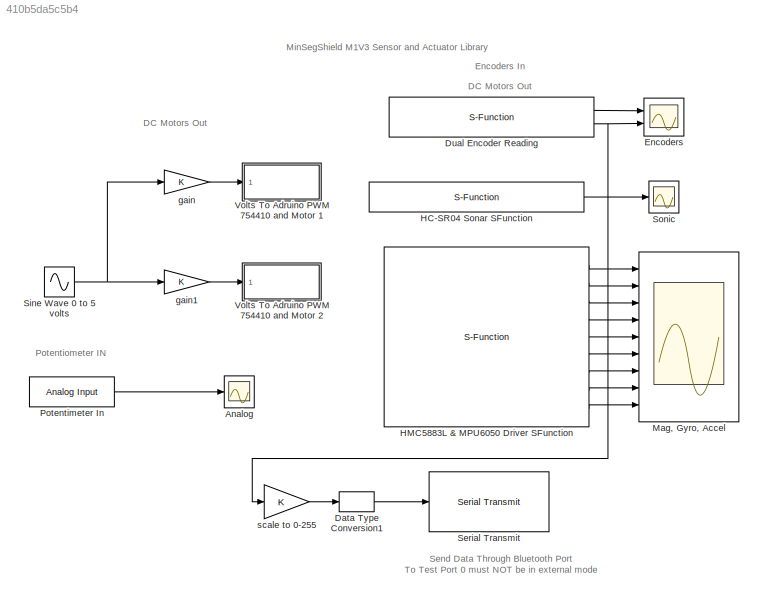
MODEL slx_410b5da5c5b4
KIND model
BLOCK [Scope] Analog
  DataFormat = StructureWithTime
  Floating = off
  NumInputPorts = 1
  Ports = [1]
  SampleTime = 0
  SaveName = ScopeData6
  ShowLegends = off
  TimeRange = 30
  YMax = 1100
  YMin = 200
BLOCK [DataTypeConversion] Data Type Conversion1
  OutDataTypeStr = uint8
  RndMeth = Floor
  SaturateOnIntegerOverflow = off
BLOCK [S-Function] Dual Encoder Reading
  CopyFcn = set_param(gcbh,'LinkStatus','none')
  EnableBusSupport = off
  FunctionName = sf_QuadEncoder_2_3_18_19
  InitFcn = try, set_param(gcb,'FunctionName','sf_QuadEncoder_2_3_18_19'), end
  OpenFcn = sfunctionwizard(gcbh)
  Parameters = uint8([0 1]),uint8([2 18]),uint8([3 19])
  Ports = [0, 2]
  PreSaveFcn = try, set_param(gcb,'FunctionName','sf_QuadEncoder_2_3_18_19'), end
  SFunctionModules = sf_QuadEncoder_2_3_18_19_wrapper
BLOCK [Scope] Encoders
  DataFormat = StructureWithTime
  Floating = off
  NumInputPorts = 2
  Ports = [2]
  SampleTime = 0
  ShowLegends = off
  TimeRange = 10
  YMax = 400~1
  YMin = -700~-1
BLOCK [S-Function] HC-SR04 Sonar SFunction
  CopyFcn = set_param(gcbh,'LinkStatus','none')
  EnableBusSupport = off
  FunctionName = sf_HCSR04_7_8
  InitFcn = try, set_param(gcb,'FunctionName','sf_HCSR04_7_8'), end
  OpenFcn = sfunctionwizard(gcbh)
  Ports = [0, 1]
  PreSaveFcn = try, set_param(gcb,'FunctionName','sf_HCSR04_7_8'), end
  SFunctionModules = sf_HCSR04_7_8_wrapper
BLOCK [S-Function] HMC5883L & MPU6050 Driver SFunction
  CopyFcn = set_param(gcbh,'LinkStatus','none')
  EnableBusSupport = off
  FunctionName = sf_HMC5883L_MPU6050
  InitFcn = try, set_param(gcb,'FunctionName','sf_HMC5883L_MPU6050'), end
  OpenFcn = sfunctionwizard(gcbh)
  Ports = [0, 9]
  PreSaveFcn = try, set_param(gcb,'FunctionName','sf_HMC5883L_MPU6050'), end
  SFunctionModules = sf_HMC5883L_MPU6050_wrapper
BLOCK [Scope] Mag, Gyro, Accel
  DataFormat = StructureWithTime
  Floating = off
  NumInputPorts = 9
  Ports = [9]
  SampleTime = 0
  SaveName = ScopeData1
  ShowLegends = off
  TimeRange = 10
  YMax = 400~0~0~15000~1500~25000~7500~10000~20000
  YMin = 0~-300~-750~-15000~-2000~-20000~-7500~-7500~-5000
BLOCK [Reference] Potentimeter In  REF=arduinolib/Analog Input
  Ports = [0, 1]
  SourceBlock = arduinolib/Analog Input
  SourceType = Arduino Analog Input
  pinNumber = 0
  sampleTime = -1
BLOCK [Reference] Serial Transmit  REF=arduinolib/Serial Transmit
  Ports = [1]
  SourceBlock = arduinolib/Serial Transmit
  SourceType = Arduino Serial Transmit
  portNumber = 2
BLOCK [Sin] Sine Wave 0 to 5 volts
  Amplitude = 5
  Frequency = 50*2*pi
  Ports = [0, 1]
  SampleTime = .1
  Samples = 30
  SineType = Sample based
BLOCK [Scope] Sonic
  DataFormat = StructureWithTime
  Floating = off
  NumInputPorts = 1
  Ports = [1]
  SampleTime = 0
  SaveName = ScopeData2
  ShowLegends = off
  TimeRange = 30
  YMax = 175
  YMin = 0
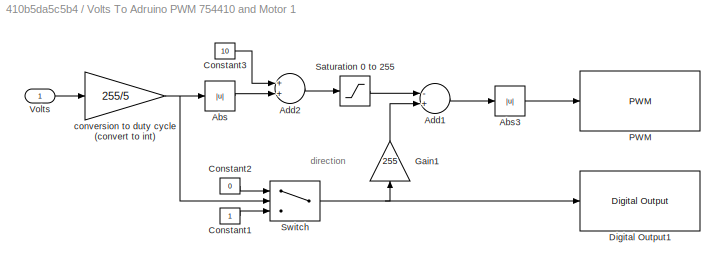
BLOCK [SubSystem] Volts To Adruino PWM 754410 and Motor 1
  FunctionWithSeparateData = off
  MaskHideContents = off
  MinAlgLoopOccurrences = off
  Opaque = off
  Ports = [1]
  PropExecContextOutsideSubsystem = off
  RTWSystemCode = Auto
  RequestExecContextInheritance = off
BLOCK [Abs] Volts To Adruino PWM 754410 and Motor 1/Abs
  SaturateOnIntegerOverflow = off
BLOCK [Abs] Volts To Adruino PWM 754410 and Motor 1/Abs3
  SaturateOnIntegerOverflow = off
BLOCK [Sum] Volts To Adruino PWM 754410 and Motor 1/Add1
  InputSameDT = off
  Inputs = -+
  OutDataTypeStr = Inherit: Inherit via internal rule
  Ports = [2, 1]
  SaturateOnIntegerOverflow = off
BLOCK [Sum] Volts To Adruino PWM 754410 and Motor 1/Add2
  InputSameDT = off
  OutDataTypeStr = Inherit: Inherit via internal rule
  Ports = [2, 1]
  SaturateOnIntegerOverflow = off
BLOCK [Constant] Volts To Adruino PWM 754410 and Motor 1/Constant1
BLOCK [Constant] Volts To Adruino PWM 754410 and Motor 1/Constant2
  Value = 0
BLOCK [Constant] Volts To Adruino PWM 754410 and Motor 1/Constant3
  Value = 10
BLOCK [Reference] Volts To Adruino PWM 754410 and Motor 1/Digital Output1  REF=arduinolib/Digital Output
  Ports = [1]
  SourceBlock = arduinolib/Digital Output
  SourceType = Arduino Digital Output
  pinNumber = 5
BLOCK [Gain] Volts To Adruino PWM 754410 and Motor 1/Gain1
  Gain = 255
  OutDataTypeStr = Inherit: Inherit via internal rule
  ParamDataTypeStr = Inherit: Inherit via internal rule
  SaturateOnIntegerOverflow = off
BLOCK [Reference] Volts To Adruino PWM 754410 and Motor 1/PWM  REF=arduinolib/PWM
  Ports = [1]
  SourceBlock = arduinolib/PWM
  SourceType = Arduino PWM
  pinNumber = 4
BLOCK [Saturate] Volts To Adruino PWM 754410 and Motor 1/Saturation 0 to 255
  InputPortMap = u0
  LowerLimit = 0
  Ports = [1, 1]
  UpperLimit = 255
BLOCK [Switch] Volts To Adruino PWM 754410 and Motor 1/Switch
  InputSameDT = off
  SaturateOnIntegerOverflow = off
BLOCK [Inport] Volts To Adruino PWM 754410 and Motor 1/Volts
  IconDisplay = Port number
BLOCK [Gain] Volts To Adruino PWM 754410 and Motor 1/conversion to duty cycle (convert to int)
  Gain = 255/5
  OutDataTypeStr = int16
  ParamDataTypeStr = Inherit: Inherit via internal rule
  SaturateOnIntegerOverflow = off
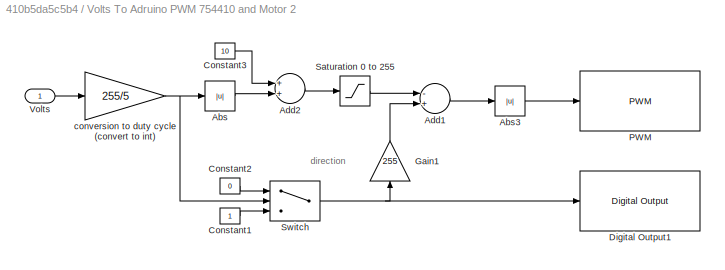
BLOCK [SubSystem] Volts To Adruino PWM 754410 and Motor 2
  FunctionWithSeparateData = off
  MaskHideContents = off
  MinAlgLoopOccurrences = off
  Opaque = off
  Ports = [1]
  PropExecContextOutsideSubsystem = off
  RTWSystemCode = Auto
  RequestExecContextInheritance = off
BLOCK [Abs] Volts To Adruino PWM 754410 and Motor 2/Abs
  SaturateOnIntegerOverflow = off
BLOCK [Abs] Volts To Adruino PWM 754410 and Motor 2/Abs3
  SaturateOnIntegerOverflow = off
BLOCK [Sum] Volts To Adruino PWM 754410 and Motor 2/Add1
  InputSameDT = off
  Inputs = -+
  OutDataTypeStr = Inherit: Inherit via internal rule
  Ports = [2, 1]
  SaturateOnIntegerOverflow = off
BLOCK [Sum] Volts To Adruino PWM 754410 and Motor 2/Add2
  InputSameDT = off
  OutDataTypeStr = Inherit: Inherit via internal rule
  Ports = [2, 1]
  SaturateOnIntegerOverflow = off
BLOCK [Constant] Volts To Adruino PWM 754410 and Motor 2/Constant1
BLOCK [Constant] Volts To Adruino PWM 754410 and Motor 2/Constant2
  Value = 0
BLOCK [Constant] Volts To Adruino PWM 754410 and Motor 2/Constant3
  Value = 10
BLOCK [Reference] Volts To Adruino PWM 754410 and Motor 2/Digital Output1  REF=arduinolib/Digital Output
  Ports = [1]
  SourceBlock = arduinolib/Digital Output
  SourceType = Arduino Digital Output
  pinNumber = 11
BLOCK [Gain] Volts To Adruino PWM 754410 and Motor 2/Gain1
  Gain = 255
  OutDataTypeStr = Inherit: Inherit via internal rule
  ParamDataTypeStr = Inherit: Inherit via internal rule
  SaturateOnIntegerOverflow = off
BLOCK [Reference] Volts To Adruino PWM 754410 and Motor 2/PWM  REF=arduinolib/PWM
  Ports = [1]
  SourceBlock = arduinolib/PWM
  SourceType = Arduino PWM
  pinNumber = 9
BLOCK [Saturate] Volts To Adruino PWM 754410 and Motor 2/Saturation 0 to 255
  InputPortMap = u0
  LowerLimit = 0
  Ports = [1, 1]
  UpperLimit = 255
BLOCK [Switch] Volts To Adruino PWM 754410 and Motor 2/Switch
  InputSameDT = off
  SaturateOnIntegerOverflow = off
BLOCK [Inport] Volts To Adruino PWM 754410 and Motor 2/Volts
  IconDisplay = Port number
BLOCK [Gain] Volts To Adruino PWM 754410 and Motor 2/conversion to duty cycle (convert to int)
  Gain = 255/5
  OutDataTypeStr = int16
  ParamDataTypeStr = Inherit: Inherit via internal rule
  SaturateOnIntegerOverflow = off
BLOCK [Gain] gain
  OutDataTypeStr = int16
  ParamDataTypeStr = Inherit: Inherit via internal rule
  SaturateOnIntegerOverflow = off
BLOCK [Gain] gain1
  OutDataTypeStr = int16
  ParamDataTypeStr = Inherit: Inherit via internal rule
  SaturateOnIntegerOverflow = off
BLOCK [Gain] scale to 0-255
  OutDataTypeStr = int16
  ParamDataTypeStr = Inherit: Inherit via internal rule
  SaturateOnIntegerOverflow = off
ANNOTATION (root): DC Motors Out
ANNOTATION (root): Encoders In
ANNOTATION (root): MinSegShield M1V3 Sensor and Actuator Library
ANNOTATION (root): Potentiometer IN
ANNOTATION (root): Send Data Through Bluetooth Port To Test Port 0 must NOT be in external mode
ANNOTATION Volts To Adruino PWM 754410 and Motor 1: direction
ANNOTATION Volts To Adruino PWM 754410 and Motor 2: direction
LINE Data Type Conversion1:1 -> Serial Transmit:1
LINE Dual Encoder Reading:1 -> Encoders:1
NET Dual Encoder Reading:2 -> Encoders:2, scale to 0-255:1
LINE HC-SR04 Sonar SFunction:1 -> Sonic:1
LINE HMC5883L & MPU6050 Driver SFunction:1 -> Mag, Gyro, Accel:1
LINE HMC5883L & MPU6050 Driver SFunction:2 -> Mag, Gyro, Accel:2
LINE HMC5883L & MPU6050 Driver SFunction:3 -> Mag, Gyro, Accel:3
LINE HMC5883L & MPU6050 Driver SFunction:4 -> Mag, Gyro, Accel:4
LINE HMC5883L & MPU6050 Driver SFunction:5 -> Mag, Gyro, Accel:5
LINE HMC5883L & MPU6050 Driver SFunction:6 -> Mag, Gyro, Accel:6
LINE HMC5883L & MPU6050 Driver SFunction:7 -> Mag, Gyro, Accel:7
LINE HMC5883L & MPU6050 Driver SFunction:8 -> Mag, Gyro, Accel:8
LINE HMC5883L & MPU6050 Driver SFunction:9 -> Mag, Gyro, Accel:9
LINE Potentimeter In:1 -> Analog:1
NET Sine Wave 0 to 5 volts:1 -> gain1:1, gain:1
LINE Volts To Adruino PWM 754410 and Motor 1/Abs3:1 -> Volts To Adruino PWM 754410 and Motor 1/PWM:1
LINE Volts To Adruino PWM 754410 and Motor 1/Abs:1 -> Volts To Adruino PWM 754410 and Motor 1/Add2:2
LINE Volts To Adruino PWM 754410 and Motor 1/Add1:1 -> Volts To Adruino PWM 754410 and Motor 1/Abs3:1
LINE Volts To Adruino PWM 754410 and Motor 1/Add2:1 -> Volts To Adruino PWM 754410 and Motor 1/Saturation 0 to 255:1
LINE Volts To Adruino PWM 754410 and Motor 1/Constant1:1 -> Volts To Adruino PWM 754410 and Motor 1/Switch:3
LINE Volts To Adruino PWM 754410 and Motor 1/Constant2:1 -> Volts To Adruino PWM 754410 and Motor 1/Switch:1
LINE Volts To Adruino PWM 754410 and Motor 1/Constant3:1 -> Volts To Adruino PWM 754410 and Motor 1/Add2:1
LINE Volts To Adruino PWM 754410 and Motor 1/Gain1:1 -> Volts To Adruino PWM 754410 and Motor 1/Add1:2
LINE Volts To Adruino PWM 754410 and Motor 1/Saturation 0 to 255:1 -> Volts To Adruino PWM 754410 and Motor 1/Add1:1
NET Volts To Adruino PWM 754410 and Motor 1/Switch:1 -> Volts To Adruino PWM 754410 and Motor 1/Digital Output1:1, Volts To Adruino PWM 754410 and Motor 1/Gain1:1
LINE Volts To Adruino PWM 754410 and Motor 1/Volts:1 -> Volts To Adruino PWM 754410 and Motor 1/conversion to duty cycle (convert to int):1
NET Volts To Adruino PWM 754410 and Motor 1/conversion to duty cycle (convert to int):1 -> Volts To Adruino PWM 754410 and Motor 1/Abs:1, Volts To Adruino PWM 754410 and Motor 1/Switch:2
LINE Volts To Adruino PWM 754410 and Motor 2/Abs3:1 -> Volts To Adruino PWM 754410 and Motor 2/PWM:1
LINE Volts To Adruino PWM 754410 and Motor 2/Abs:1 -> Volts To Adruino PWM 754410 and Motor 2/Add2:2
LINE Volts To Adruino PWM 754410 and Motor 2/Add1:1 -> Volts To Adruino PWM 754410 and Motor 2/Abs3:1
LINE Volts To Adruino PWM 754410 and Motor 2/Add2:1 -> Volts To Adruino PWM 754410 and Motor 2/Saturation 0 to 255:1
LINE Volts To Adruino PWM 754410 and Motor 2/Constant1:1 -> Volts To Adruino PWM 754410 and Motor 2/Switch:3
LINE Volts To Adruino PWM 754410 and Motor 2/Constant2:1 -> Volts To Adruino PWM 754410 and Motor 2/Switch:1
LINE Volts To Adruino PWM 754410 and Motor 2/Constant3:1 -> Volts To Adruino PWM 754410 and Motor 2/Add2:1
LINE Volts To Adruino PWM 754410 and Motor 2/Gain1:1 -> Volts To Adruino PWM 754410 and Motor 2/Add1:2
LINE Volts To Adruino PWM 754410 and Motor 2/Saturation 0 to 255:1 -> Volts To Adruino PWM 754410 and Motor 2/Add1:1
NET Volts To Adruino PWM 754410 and Motor 2/Switch:1 -> Volts To Adruino PWM 754410 and Motor 2/Digital Output1:1, Volts To Adruino PWM 754410 and Motor 2/Gain1:1
LINE Volts To Adruino PWM 754410 and Motor 2/Volts:1 -> Volts To Adruino PWM 754410 and Motor 2/conversion to duty cycle (convert to int):1
NET Volts To Adruino PWM 754410 and Motor 2/conversion to duty cycle (convert to int):1 -> Volts To Adruino PWM 754410 and Motor 2/Abs:1, Volts To Adruino PWM 754410 and Motor 2/Switch:2
LINE gain1:1 -> Volts To Adruino PWM 754410 and Motor 2:1
LINE gain:1 -> Volts To Adruino PWM 754410 and Motor 1:1
LINE scale to 0-255:1 -> Data Type Conversion1:1
note: NET lines group one-source signal fan-out (src -> all destinations, sorted); 1:1 wires keep LINE
